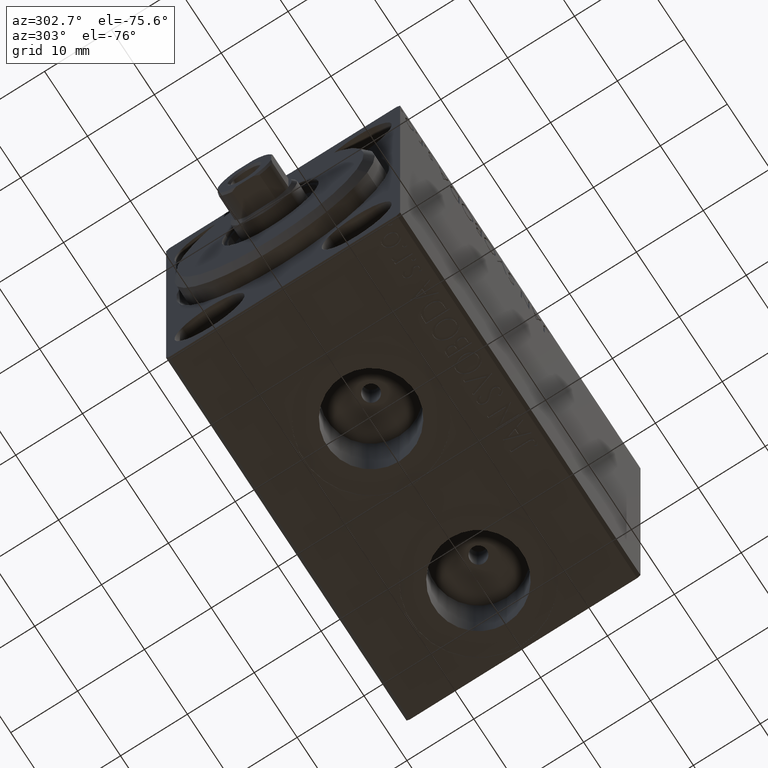
[diagram: clean part render]
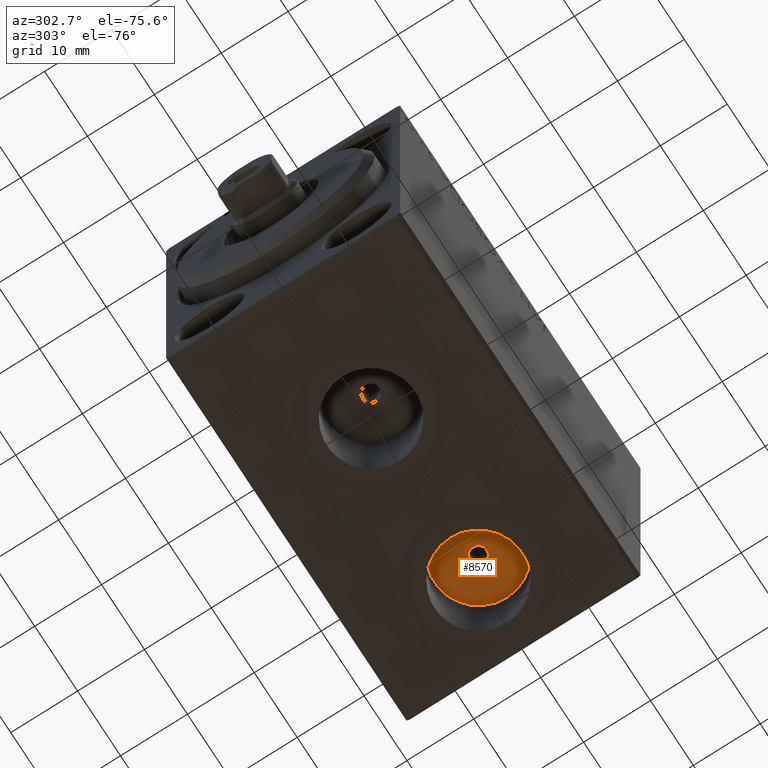
[diagram: same view with one face highlighted and labeled with its STEP entity id]
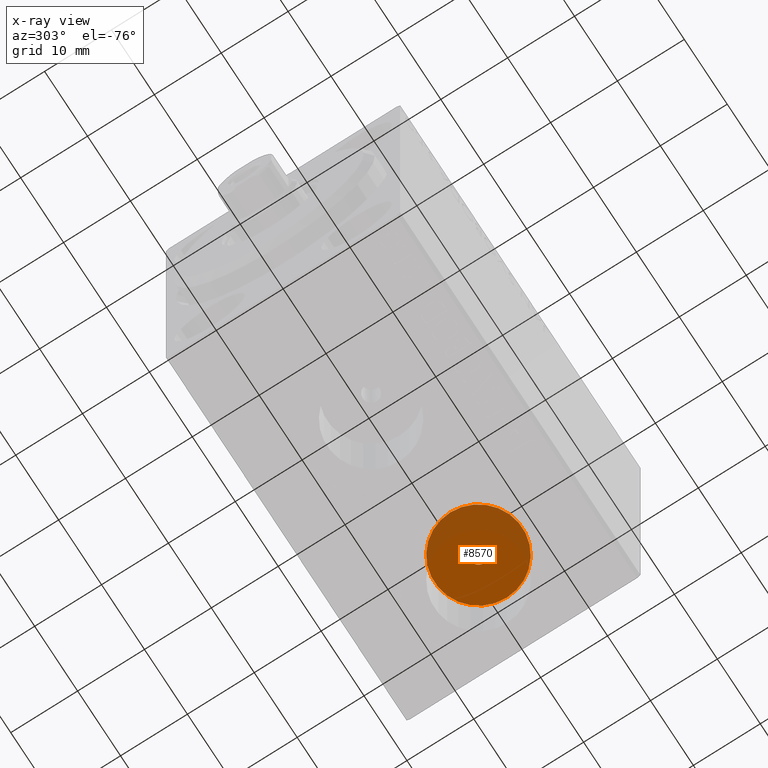
[diagram: x-ray of the same camera — body ghosted, the highlighted face saturated]
A machine part, auxiliary view. The second image highlights one B-rep face of the part: STEP entity #8570.
The next image is the same camera in x-ray: the body ghosted, the highlighted face saturated — about 33% of this face is hidden behind the body in this view.
In plain terms, the highlighted planar face has unit normal (0, 0, -1).
Its self-contained STEP definition (entity closure, byte-faithful):
#1053 = AXIS2_PLACEMENT_3D ( 'NONE', #43211, #35893, #42547 ) ;
#2190 = CARTESIAN_POINT ( 'NONE',  ( 45.50000000000000000, -5.788603209277299718E-15, -14.50000000000000355 ) ) ;
#3080 = CIRCLE ( 'NONE', #29404, 1.249999999999994227 ) ;
#4400 = AXIS2_PLACEMENT_3D ( 'NONE', #2190, #8872, #5530 ) ;
#5355 = VERTEX_POINT ( 'NONE', #19106 ) ;
#5356 = DIRECTION ( 'NONE',  ( 0.000000000000000000, 0.000000000000000000, -1.000000000000000000 ) ) ;
#5530 = DIRECTION ( 'NONE',  ( -1.000000000000000000, 0.000000000000000000, 0.000000000000000000 ) ) ;
#5569 = DIRECTION ( 'NONE',  ( -1.000000000000000000, 0.000000000000000000, 0.000000000000000000 ) ) ;
#8190 = CIRCLE ( 'NONE', #1053, 6.580000000000002736 ) ;
#8570 = ADVANCED_FACE ( 'NONE', ( #16069, #19845 ), #36545, .T. ) ;
#8872 = DIRECTION ( 'NONE',  ( 0.000000000000000000, 0.000000000000000000, -1.000000000000000000 ) ) ;
#10750 = DIRECTION ( 'NONE',  ( 0.000000000000000000, 0.000000000000000000, -1.000000000000000000 ) ) ;
#11557 = EDGE_CURVE ( 'NONE', #5355, #18980, #22884, .T. ) ;
#12913 = CARTESIAN_POINT ( 'NONE',  ( 0.000000000000000000, 0.000000000000000000, -14.50000000000000355 ) ) ;
#13622 = AXIS2_PLACEMENT_3D ( 'NONE', #15158, #5356, #5569 ) ;
#14802 = EDGE_CURVE ( 'NONE', #18980, #5355, #3080, .T. ) ;
#15158 = CARTESIAN_POINT ( 'NONE',  ( 45.50000000000000000, -5.801946424232537925E-15, -14.50000000000000355 ) ) ;
#16069 = FACE_BOUND ( 'NONE', #42230, .T. ) ;
#16536 = EDGE_LOOP ( 'NONE', ( #38466, #24016 ) ) ;
#17466 = CARTESIAN_POINT ( 'NONE',  ( 38.91999999999999460, -5.788603209277299718E-15, -14.50000000000000355 ) ) ;
#18890 = ORIENTED_EDGE ( 'NONE', *, *, #11557, .F. ) ;
#18980 = VERTEX_POINT ( 'NONE', #32008 ) ;
#19106 = CARTESIAN_POINT ( 'NONE',  ( 46.74999999999999289, -5.648865574339118990E-15, -14.50000000000000355 ) ) ;
#19845 = FACE_OUTER_BOUND ( 'NONE', #16536, .T. ) ;
#21068 = ORIENTED_EDGE ( 'NONE', *, *, #14802, .F. ) ;
#21650 = CARTESIAN_POINT ( 'NONE',  ( 52.07999999999999829, -4.982785615438341465E-15, -14.50000000000000355 ) ) ;
#21678 = CARTESIAN_POINT ( 'NONE',  ( 45.50000000000000000, -5.801946424232537925E-15, -14.50000000000000355 ) ) ;
#22884 = CIRCLE ( 'NONE', #13622, 1.249999999999994227 ) ;
#23597 = CIRCLE ( 'NONE', #4400, 6.580000000000002736 ) ;
#24016 = ORIENTED_EDGE ( 'NONE', *, *, #37183, .T. ) ;
#26731 = DIRECTION ( 'NONE',  ( 0.000000000000000000, 0.000000000000000000, -1.000000000000000000 ) ) ;
#27790 = VERTEX_POINT ( 'NONE', #17466 ) ;
#28340 = DIRECTION ( 'NONE',  ( -1.000000000000000000, 0.000000000000000000, 0.000000000000000000 ) ) ;
#28731 = EDGE_CURVE ( 'NONE', #27790, #30074, #23597, .T. ) ;
#29404 = AXIS2_PLACEMENT_3D ( 'NONE', #21678, #10750, #28340 ) ;
#30074 = VERTEX_POINT ( 'NONE', #21650 ) ;
#31370 = AXIS2_PLACEMENT_3D ( 'NONE', #12913, #26731, #43866 ) ;
#32008 = CARTESIAN_POINT ( 'NONE',  ( 44.25000000000000711, -5.801946424232537925E-15, -14.50000000000000355 ) ) ;
#35893 = DIRECTION ( 'NONE',  ( 0.000000000000000000, 0.000000000000000000, -1.000000000000000000 ) ) ;
#36545 = PLANE ( 'NONE',  #31370 ) ;
#37183 = EDGE_CURVE ( 'NONE', #30074, #27790, #8190, .T. ) ;
#38466 = ORIENTED_EDGE ( 'NONE', *, *, #28731, .T. ) ;
#42230 = EDGE_LOOP ( 'NONE', ( #21068, #18890 ) ) ;
#42547 = DIRECTION ( 'NONE',  ( -1.000000000000000000, 0.000000000000000000, 0.000000000000000000 ) ) ;
#43211 = CARTESIAN_POINT ( 'NONE',  ( 45.50000000000000000, -5.788603209277299718E-15, -14.50000000000000355 ) ) ;
#43866 = DIRECTION ( 'NONE',  ( -1.000000000000000000, 0.000000000000000000, -0.000000000000000000 ) ) ;